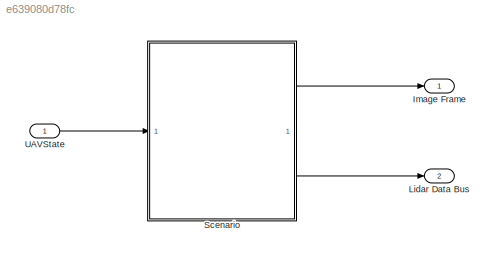
MODEL slx_e639080d78fc
KIND model
CONFIG AbsTol = auto
CONFIG EnableMultiTasking = on
CONFIG FixedStep = auto
CONFIG MaxStep = auto
CONFIG MinStep = auto
CONFIG RelTol = 1e-3
CONFIG SampleTimeConstraint = Unconstrained
CONFIG SolverName = FixedStepAuto
CONFIG StartTime = 0.0
CONFIG StopTime = 50
BLOCK [Outport] Image Frame
  SamplingMode = Sample based
  SignalType = real
BLOCK [Outport] Lidar Data Bus
  OutDataTypeStr = Bus: LidarData
  Port = 2
  SamplingMode = Sample based
  SignalType = real
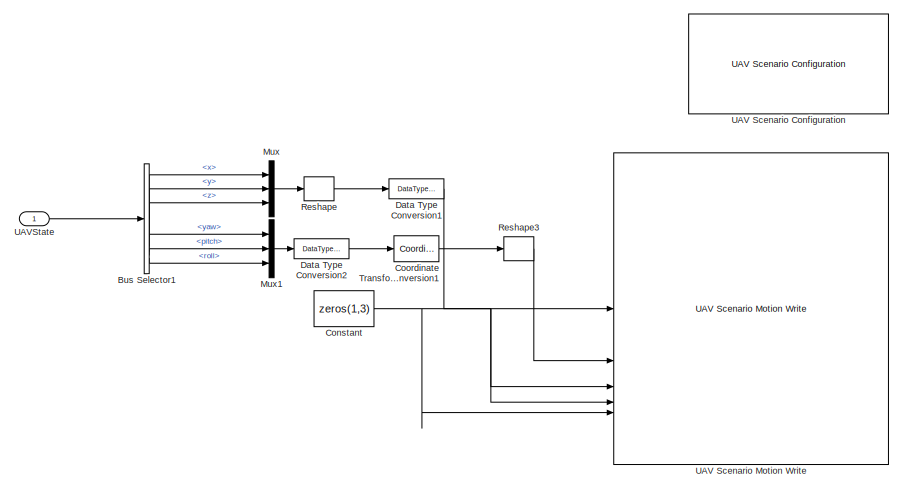
[diagram: Scenario - part 1/2, left side, full height]
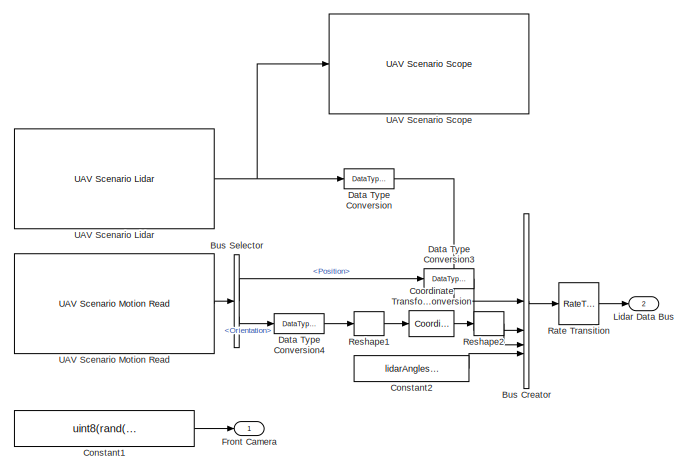
[diagram: Scenario - part 2/2, right side, full height]
BLOCK [SubSystem] Scenario
  VariantControl = isPhotoRealisticSim==1
BLOCK [BusCreator] Scenario/Bus Creator
  DisplayOption = bar
  InheritFromInputs = off
  Inputs = 4
  NonVirtualBus = on
  OutDataTypeStr = Bus: LidarData
BLOCK [BusSelector] Scenario/Bus Selector
  OutputSignals = Position,Orientation
BLOCK [BusSelector] Scenario/Bus Selector1
  NameLocation = top
  OutputSignals = pos_vel.x,pos_vel.y,pos_vel.z,attitude.yaw,attitude.pitch,attitude.roll
BLOCK [Constant] Scenario/Constant
  Value = zeros(1,3)
BLOCK [Constant] Scenario/Constant1
  Value = uint8(rand(480,752,3)*10)
BLOCK [Constant] Scenario/Constant2
  Value = lidarAngles(end:-1:1)
BLOCK [Reference] Scenario/Coordinate Transformation Conversion  REF=robotcorelib/Coordinate Transformation Conversion
  SourceBlock = robotcorelib/Coordinate Transformation Conversion
  SourceType = robotics.slcore.internal.block.CoordinateTransformationConversion
BLOCK [Reference] Scenario/Coordinate Transformation Conversion1  REF=robotcorelib/Coordinate Transformation Conversion
  SourceBlock = robotcorelib/Coordinate Transformation Conversion
  SourceType = robotics.slcore.internal.block.CoordinateTransformationConversion
BLOCK [DataTypeConversion] Scenario/Data Type Conversion
  OutDataTypeStr = single
  RndMeth = Floor
  SaturateOnIntegerOverflow = off
BLOCK [DataTypeConversion] Scenario/Data Type Conversion1
  OutDataTypeStr = double
  RndMeth = Floor
  SaturateOnIntegerOverflow = off
BLOCK [DataTypeConversion] Scenario/Data Type Conversion2
  OutDataTypeStr = double
  RndMeth = Floor
  SaturateOnIntegerOverflow = off
BLOCK [DataTypeConversion] Scenario/Data Type Conversion3
  OutDataTypeStr = single
  RndMeth = Floor
  SaturateOnIntegerOverflow = off
BLOCK [DataTypeConversion] Scenario/Data Type Conversion4
  OutDataTypeStr = single
  RndMeth = Floor
  SaturateOnIntegerOverflow = off
BLOCK [Outport] Scenario/Front Camera
BLOCK [Outport] Scenario/Lidar Data Bus
  Port = 2
BLOCK [Mux] Scenario/Mux
  DisplayOption = bar
  Inputs = 3
BLOCK [Mux] Scenario/Mux1
  DisplayOption = bar
  Inputs = 3
BLOCK [RateTransition] Scenario/Rate Transition
  OutPortSampleTime = 0.5
BLOCK [Reshape] Scenario/Reshape
  OutputDimensionality = Row vector (2-D)
BLOCK [Reshape] Scenario/Reshape1
  OutputDimensionality = Column vector (2-D)
BLOCK [Reshape] Scenario/Reshape2
  OutputDimensionality = Row vector (2-D)
BLOCK [Reshape] Scenario/Reshape3
  OutputDimensionality = Row vector (2-D)
BLOCK [Reference] Scenario/UAV Scenario Configuration  REF=uavsimlib/UAV Scenario Configuration
  Priority = -1
  SourceBlock = uavsimlib/UAV Scenario Configuration
  SourceType = UAV Scenario Configuration
BLOCK [Reference] Scenario/UAV Scenario Lidar  REF=uavsimlib/UAV Scenario Lidar
  Priority = 1
  SourceBlock = uavsimlib/UAV Scenario Lidar
  SourceType = UAV Scenario Lidar
BLOCK [Reference] Scenario/UAV Scenario Motion Read  REF=uavsimlib/UAV Scenario Motion Read
  Priority = 1
  SourceBlock = uavsimlib/UAV Scenario Motion Read
  SourceType = UAV Scenario Motion Read
BLOCK [Reference] Scenario/UAV Scenario Motion Write  REF=uavsimlib/UAV Scenario Motion Write
  Priority = 0
  SourceBlock = uavsimlib/UAV Scenario Motion Write
  SourceType = UAV Scenario Motion Write
BLOCK [Reference] Scenario/UAV Scenario Scope  REF=uavsimlib/UAV Scenario Scope
  Priority = 1
  SourceBlock = uavsimlib/UAV Scenario Scope
  SourceType = UAV Scenario Scope
BLOCK [Inport] Scenario/UAVState
BLOCK [Inport] UAVState
  BusOutputAsStruct = on
  OutDataTypeStr = Bus: uavStateBus
LINE Scenario/Bus Creator:1 -> Scenario/Rate Transition:1
LINE Scenario/Bus Selector1:1 -> Scenario/Mux:1
LINE Scenario/Bus Selector1:2 -> Scenario/Mux:2
LINE Scenario/Bus Selector1:3 -> Scenario/Mux:3
LINE Scenario/Bus Selector1:4 -> Scenario/Mux1:1
LINE Scenario/Bus Selector1:5 -> Scenario/Mux1:2
LINE Scenario/Bus Selector1:6 -> Scenario/Mux1:3
LINE Scenario/Bus Selector:1 -> Scenario/Data Type Conversion3:1
LINE Scenario/Bus Selector:2 -> Scenario/Data Type Conversion4:1
LINE Scenario/Constant1:1 -> Scenario/Front Camera:1
LINE Scenario/Constant2:1 -> Scenario/Bus Creator:4
NET Scenario/Constant:1 -> Scenario/UAV Scenario Motion Write:3, Scenario/UAV Scenario Motion Write:4, Scenario/UAV Scenario Motion Write:5
LINE Scenario/Coordinate Transformation Conversion1:1 -> Scenario/Reshape3:1
LINE Scenario/Coordinate Transformation Conversion:1 -> Scenario/Reshape2:1
LINE Scenario/Data Type Conversion1:1 -> Scenario/UAV Scenario Motion Write:1
LINE Scenario/Data Type Conversion2:1 -> Scenario/Coordinate Transformation Conversion1:1
LINE Scenario/Data Type Conversion3:1 -> Scenario/Bus Creator:2
LINE Scenario/Data Type Conversion4:1 -> Scenario/Reshape1:1
LINE Scenario/Data Type Conversion:1 -> Scenario/Bus Creator:1
LINE Scenario/Mux1:1 -> Scenario/Data Type Conversion2:1
LINE Scenario/Mux:1 -> Scenario/Reshape:1
LINE Scenario/Rate Transition:1 -> Scenario/Lidar Data Bus:1
LINE Scenario/Reshape1:1 -> Scenario/Coordinate Transformation Conversion:1
LINE Scenario/Reshape2:1 -> Scenario/Bus Creator:3
LINE Scenario/Reshape3:1 -> Scenario/UAV Scenario Motion Write:2
LINE Scenario/Reshape:1 -> Scenario/Data Type Conversion1:1
NET Scenario/UAV Scenario Lidar:1 -> Scenario/Data Type Conversion:1, Scenario/UAV Scenario Scope:1
LINE Scenario/UAV Scenario Motion Read:1 -> Scenario/Bus Selector:1
LINE Scenario/UAVState:1 -> Scenario/Bus Selector1:1
LINE Scenario:1 -> Image Frame:1
LINE Scenario:2 -> Lidar Data Bus:1
LINE UAVState:1 -> Scenario:1
note: NET lines group one-source signal fan-out (src -> all destinations, sorted); 1:1 wires keep LINE
